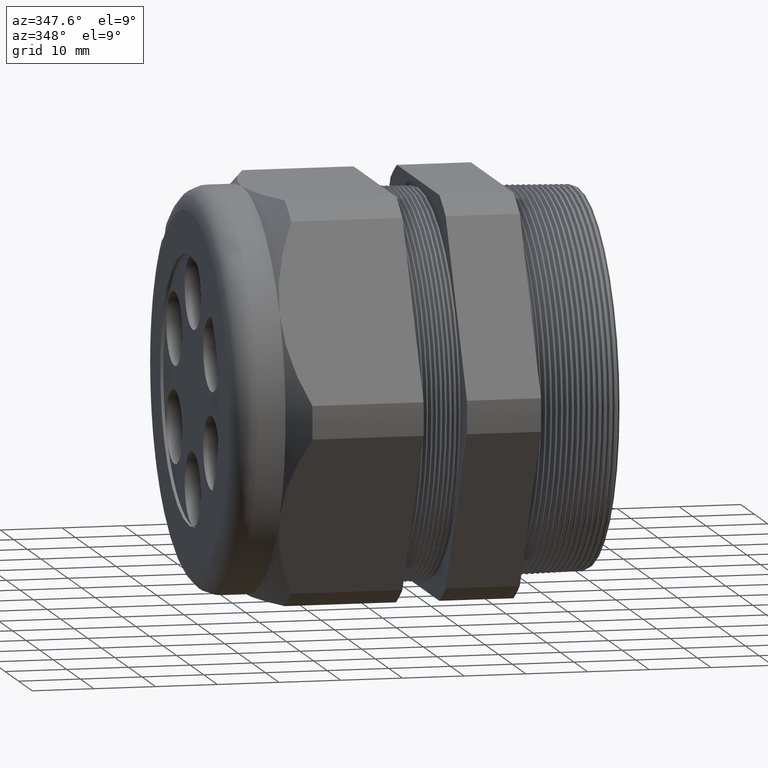
[diagram: clean part render]
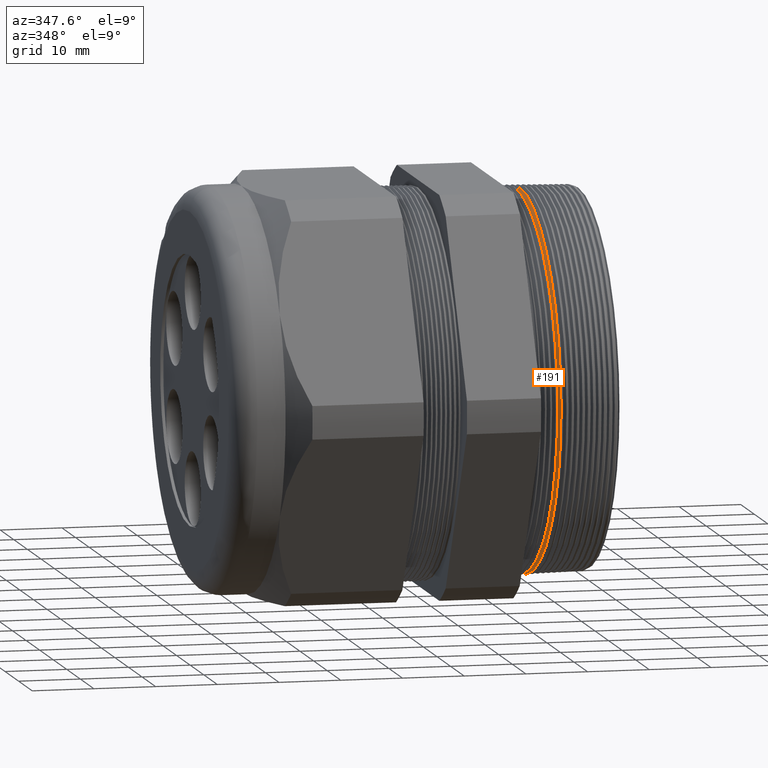
[diagram: same view with one face highlighted and labeled with its STEP entity id]
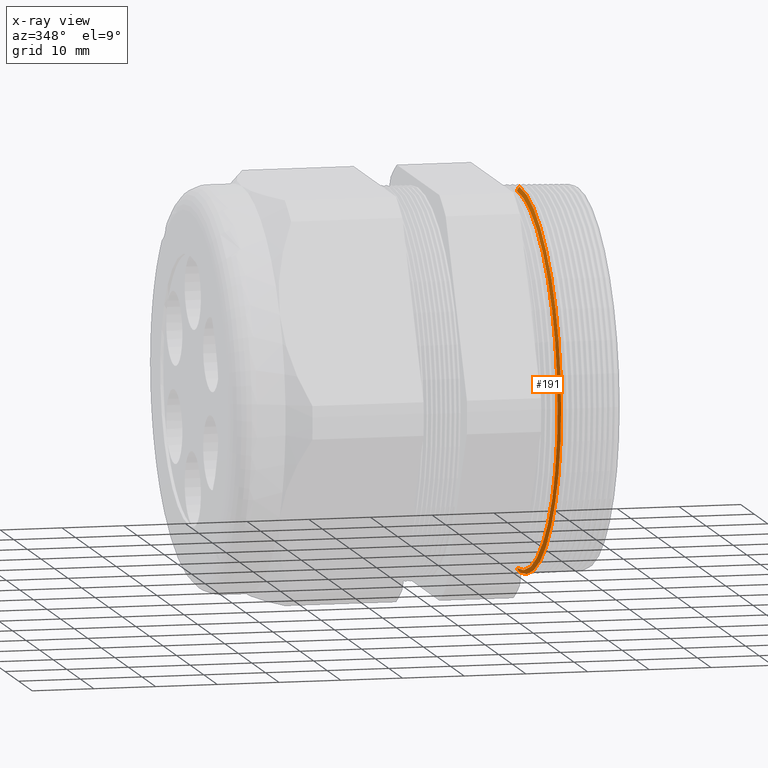
[diagram: x-ray of the same camera — body ghosted, the highlighted face saturated]
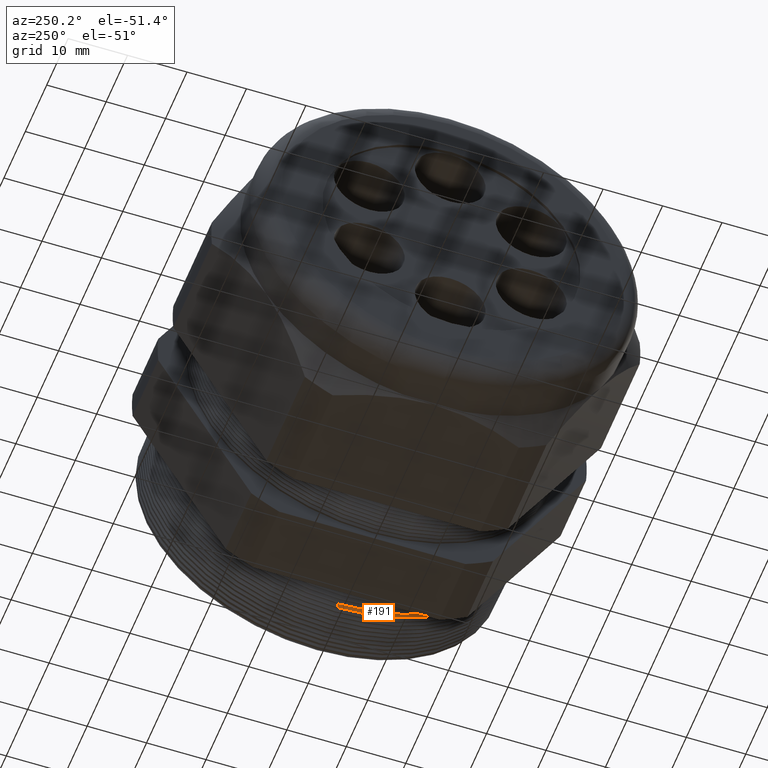
[diagram: same view with one face highlighted and labeled with its STEP entity id]
A machine part, auxiliary view. The second image highlights one B-rep face of the part: STEP entity #191.
The next image is the same camera in x-ray: the body ghosted, the highlighted face saturated — about 1% of this face is hidden behind the body in this view.
A second angle (auxiliary view) of the same face is appended — the face is thin or edge-on in the first view.
In plain terms, the highlighted conical surface has half-angle 58.5 deg.
Its self-contained STEP definition (entity closure, byte-faithful):
#172 = ORIENTED_EDGE ( 'NONE', *, *, #495, .T. ) ;
#188 = EDGE_CURVE ( 'NONE', #1578, #1606, #1876, .T. ) ;
#191 = ADVANCED_FACE ( 'NONE', ( #1872 ), #1871, .T. ) ;
#192 = EDGE_LOOP ( 'NONE', ( #193, #246, #247, #172 ) ) ;
#193 = ORIENTED_EDGE ( 'NONE', *, *, #1580, .F. ) ;
#246 = ORIENTED_EDGE ( 'NONE', *, *, #188, .T. ) ;
#247 = ORIENTED_EDGE ( 'NONE', *, *, #1586, .T. ) ;
#495 = EDGE_CURVE ( 'NONE', #1584, #1581, #2395, .T. ) ;
#1578 = VERTEX_POINT ( 'NONE', #4389 ) ;
#1580 = EDGE_CURVE ( 'NONE', #1578, #1581, #4388, .T. ) ;
#1581 = VERTEX_POINT ( 'NONE', #4384 ) ;
#1584 = VERTEX_POINT ( 'NONE', #4439 ) ;
#1586 = EDGE_CURVE ( 'NONE', #1606, #1584, #4438, .T. ) ;
#1606 = VERTEX_POINT ( 'NONE', #4450 ) ;
#1867 = DIRECTION ( 'NONE',  ( 1.000000000000000000, 0.0000000000000000000, 0.0000000000000000000 ) ) ;
#1868 = CARTESIAN_POINT ( 'NONE',  ( -0.1534707356790753200, 0.0000000000000000000, 0.0000000000000000000 ) ) ;
#1869 = AXIS2_PLACEMENT_3D ( 'NONE', #1868, #1867, #1930 ) ;
#1871 = CONICAL_SURFACE ( 'NONE', #1869, 1.189948790814587800, 1.021017612416701200 ) ;
#1872 = FACE_OUTER_BOUND ( 'NONE', #192, .T. ) ;
#1873 = DIRECTION ( 'NONE',  ( 0.0000000000000000000, 0.0000000000000000000, -1.000000000000000000 ) ) ;
#1874 = DIRECTION ( 'NONE',  ( 1.000000000000000000, 0.0000000000000000000, 0.0000000000000000000 ) ) ;
#1875 = AXIS2_PLACEMENT_3D ( 'NONE', #1880, #1874, #1873 ) ;
#1876 = CIRCLE ( 'NONE', #1875, 1.189948790814587800 ) ;
#1880 = CARTESIAN_POINT ( 'NONE',  ( -0.1534707356790753200, 0.0000000000000000000, 0.0000000000000000000 ) ) ;
#1930 = DIRECTION ( 'NONE',  ( 0.0000000000000000000, 0.0000000000000000000, -1.000000000000000000 ) ) ;
#2391 = DIRECTION ( 'NONE',  ( 0.0000000000000000000, 0.0000000000000000000, -1.000000000000000000 ) ) ;
#2392 = DIRECTION ( 'NONE',  ( -1.000000000000000000, 0.0000000000000000000, 0.0000000000000000000 ) ) ;
#2393 = CARTESIAN_POINT ( 'NONE',  ( -0.1375819195166254900, 0.0000000000000000000, 0.0000000000000000000 ) ) ;
#2394 = AXIS2_PLACEMENT_3D ( 'NONE', #2393, #2392, #2391 ) ;
#2395 = CIRCLE ( 'NONE', #2394, 1.215876982275771600 ) ;
#4384 = CARTESIAN_POINT ( 'NONE',  ( -0.1375819195166254900, 0.0000000000000000000, 1.215876982275771300 ) ) ;
#4385 = DIRECTION ( 'NONE',  ( 0.5224985647159332600, 1.044183048100724200E-016, 0.8526401643541019500 ) ) ;
#4386 = VECTOR ( 'NONE', #4385, 39.37007874015747400 ) ;
#4387 = CARTESIAN_POINT ( 'NONE',  ( -0.1534707356790753200, 1.457266977820348400E-016, 1.189948790814587800 ) ) ;
#4388 = LINE ( 'NONE', #4387, #4386 ) ;
#4389 = CARTESIAN_POINT ( 'NONE',  ( -0.1534707356790753200, 0.0000000000000000000, 1.189948790814587800 ) ) ;
#4435 = DIRECTION ( 'NONE',  ( 0.5224985647159332600, 0.0000000000000000000, -0.8526401643541019500 ) ) ;
#4436 = VECTOR ( 'NONE', #4435, 39.37007874015747400 ) ;
#4437 = CARTESIAN_POINT ( 'NONE',  ( -0.1534707356790753200, 0.0000000000000000000, -1.189948790814587800 ) ) ;
#4438 = LINE ( 'NONE', #4437, #4436 ) ;
#4439 = CARTESIAN_POINT ( 'NONE',  ( -0.1375819195166254900, 1.489019854500966500E-016, -1.215876982275771300 ) ) ;
#4450 = CARTESIAN_POINT ( 'NONE',  ( -0.1534707356790753200, 1.473630839487779600E-016, -1.189948790814587800 ) ) ;